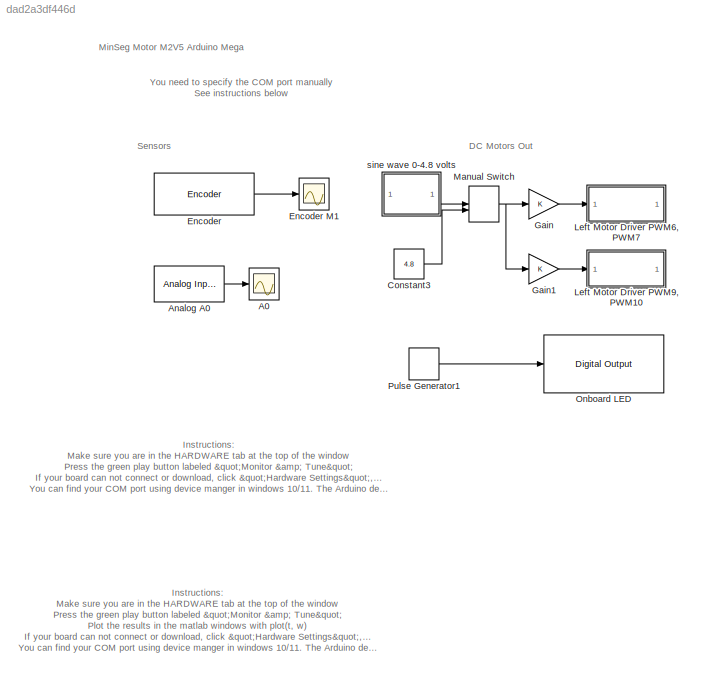
MODEL slx_dad2a3df446d
KIND model
CONFIG AbsTol = auto
CONFIG EnableMultiTasking = on
CONFIG FixedStep = .01
CONFIG MaxStep = auto
CONFIG MinStep = auto
CONFIG RelTol = 1e-3
CONFIG SampleTimeConstraint = Unconstrained
CONFIG SolverName = FixedStepDiscrete
CONFIG StartTime = 0.0
CONFIG StopTime = inf
BLOCK [Scope] A0
  ActiveDisplayYMaximum = 1150.875
  ActiveDisplayYMinimum = -127.875
  ContainerLayout = {"WindowBounds":[1405,118,727,839],"gridDimensions":{"w":1,"h":2},"tileCount":2,"tileCoverage":[1,2],"columnWeights":1,"rowWeights":[0.5,0.5],"tileOccupancy":[{"children":{"id":"/Encoder M1"}},{"children":{"id":"/A0"}}]}
  DataLoggingDecimateData = on
  DataLoggingDecimation = 1
  DataLoggingLimitDataPoints = on
  DataLoggingSaveFormat = Array
  Floating = off
  GraphicalSettings = {"Style":{"BackgroundColor":[0.12941176470588237,0.12941176470588237,0.12941176470588237],"AxesColor":[0.07058823529411765,0.07058823529411765,0.07058823529411765],"LabelsColor":[0.8509803921568627,0.8509803921568627,0.8509803921568627],"PreserveColors":false,"Visible":[true],"LineStyle":["-"],"LineWidth":[1.5],"BarWidth":[0.9],"LineColor":["auto"],"LineFaceAlpha":[1],"LineEdgeAlpha":[1],"Marker":...<+1932ch>
  MultipleDisplayCache = [{"MaxYLimMag":1150.875,"MaxYLimReal":1150.875,"MinYLimMag":0,"MinYLimReal":-127.875,"PlotAsMagnitudePhase":false,"ShowGrid":true,"ShowLegend":false,"Title":"%<SignalLabel>","YLabel":""}]
  NumInputPorts = 1
  ScopeFrameLocation = container
  Visible = on
  WasSavedAsWebScope = on
  WindowPosition = [1413.000000,491.000000,712.000000,801.000000,]
BLOCK [Reference] Analog A0  REF=arduinolib/Analog Input
  SourceBlock = arduinolib/Analog Input
  SourceType = Arduino Analog Input
BLOCK [Constant] Constant3
  Value = 4.8
BLOCK [Reference] Encoder  REF=arduinosensorlib/Encoder
  SourceBlock = arduinosensorlib/Encoder
  SourceType = Arduino Rotary Encoder
BLOCK [Scope] Encoder M1
  ActiveDisplayYMaximum = 36033.75
  ActiveDisplayYMinimum = -5613.7499999999991
  ContainerLayout = {"WindowBounds":[1405,118,727,839],"gridDimensions":{"w":1,"h":2},"tileCount":2,"tileCoverage":[1,2],"columnWeights":1,"rowWeights":[0.5,0.5],"tileOccupancy":[{"children":{"id":"/Encoder M1"}},{"children":{"id":"/A0"}}]}
  DataLoggingVariableName = ScopeData2
  Floating = off
  GraphicalSettings = {"Style":{"BackgroundColor":[0.12941176470588237,0.12941176470588237,0.12941176470588237],"AxesColor":[0.07058823529411765,0.07058823529411765,0.07058823529411765],"LabelsColor":[0.8509803921568627,0.8509803921568627,0.8509803921568627],"PreserveColors":false,"Visible":[true],"LineStyle":["-"],"LineWidth":[1.5],"BarWidth":[0.9],"LineColor":["auto"],"LineFaceAlpha":[1],"LineEdgeAlpha":[1],"Marker":...<+1937ch>
  MultipleDisplayCache = [{"MaxYLimMag":36033.75,"MaxYLimReal":36033.75,"MinYLimMag":0,"MinYLimReal":-5613.7499999999991,"PlotAsMagnitudePhase":false,"ShowGrid":true,"ShowLegend":false,"Title":"%<SignalLabel>","YLabel":""}]
  NumInputPorts = 1
  ScopeFrameLocation = container
  TimeSpanOverrunAction = Scroll
  Visible = on
  WasSavedAsWebScope = on
  WindowPosition = [1413.000000,491.000000,712.000000,801.000000,]
BLOCK [Gain] Gain
BLOCK [Gain] Gain1
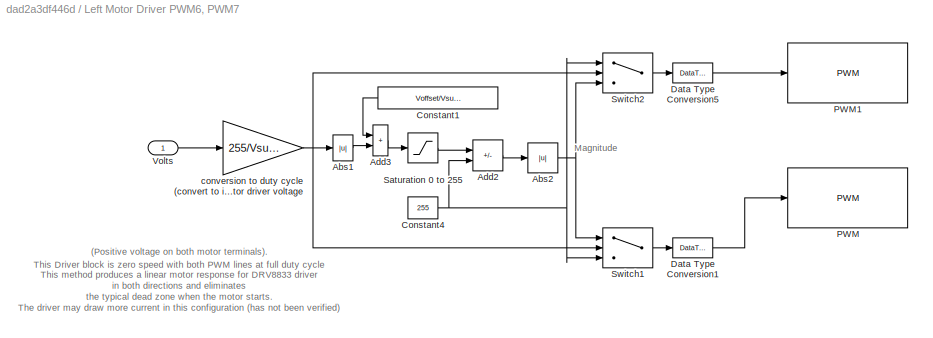
BLOCK [SubSystem] Left Motor Driver PWM6, PWM7
BLOCK [Abs] Left Motor Driver PWM6, PWM7/Abs1
  SaturateOnIntegerOverflow = off
BLOCK [Abs] Left Motor Driver PWM6, PWM7/Abs2
  SaturateOnIntegerOverflow = off
BLOCK [Sum] Left Motor Driver PWM6, PWM7/Add2
  IconShape = rectangular
  Inputs = -+
BLOCK [Sum] Left Motor Driver PWM6, PWM7/Add3
  IconShape = rectangular
BLOCK [Constant] Left Motor Driver PWM6, PWM7/Constant1
  NameLocation = top
  Value = Voffset/Vsupply*255
BLOCK [Constant] Left Motor Driver PWM6, PWM7/Constant4
  Value = 255
BLOCK [DataTypeConversion] Left Motor Driver PWM6, PWM7/Data Type Conversion1
  OutDataTypeStr = uint8
  RndMeth = Floor
  SaturateOnIntegerOverflow = off
BLOCK [DataTypeConversion] Left Motor Driver PWM6, PWM7/Data Type Conversion5
  OutDataTypeStr = uint8
  RndMeth = Floor
  SaturateOnIntegerOverflow = off
BLOCK [Reference] Left Motor Driver PWM6, PWM7/PWM  REF=arduinolib/PWM
  SourceBlock = arduinolib/PWM
  SourceType = Arduino PWM
BLOCK [Reference] Left Motor Driver PWM6, PWM7/PWM1  REF=arduinolib/PWM
  SourceBlock = arduinolib/PWM
  SourceType = Arduino PWM
BLOCK [Saturate] Left Motor Driver PWM6, PWM7/Saturation 0 to 255
  LowerLimit = 0
  UpperLimit = 255
BLOCK [Switch] Left Motor Driver PWM6, PWM7/Switch1
  InputSameDT = off
  SaturateOnIntegerOverflow = off
BLOCK [Switch] Left Motor Driver PWM6, PWM7/Switch2
  InputSameDT = off
  SaturateOnIntegerOverflow = off
BLOCK [Inport] Left Motor Driver PWM6, PWM7/Volts
BLOCK [Gain] Left Motor Driver PWM6, PWM7/conversion to duty cycle (convert to int) denominator is motor driver voltage
  Gain = 255/Vsupply
  OutDataTypeStr = int16
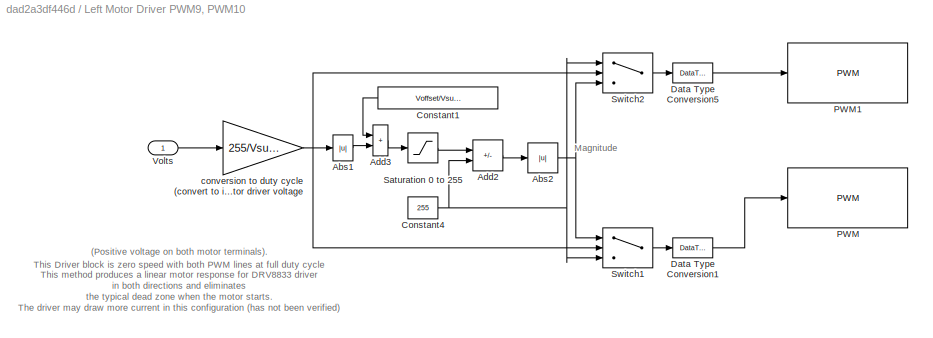
BLOCK [SubSystem] Left Motor Driver PWM9, PWM10
BLOCK [Abs] Left Motor Driver PWM9, PWM10/Abs1
  SaturateOnIntegerOverflow = off
BLOCK [Abs] Left Motor Driver PWM9, PWM10/Abs2
  SaturateOnIntegerOverflow = off
BLOCK [Sum] Left Motor Driver PWM9, PWM10/Add2
  IconShape = rectangular
  Inputs = -+
BLOCK [Sum] Left Motor Driver PWM9, PWM10/Add3
  IconShape = rectangular
BLOCK [Constant] Left Motor Driver PWM9, PWM10/Constant1
  NameLocation = top
  Value = Voffset/Vsupply*255
BLOCK [Constant] Left Motor Driver PWM9, PWM10/Constant4
  Value = 255
BLOCK [DataTypeConversion] Left Motor Driver PWM9, PWM10/Data Type Conversion1
  OutDataTypeStr = uint8
  RndMeth = Floor
  SaturateOnIntegerOverflow = off
BLOCK [DataTypeConversion] Left Motor Driver PWM9, PWM10/Data Type Conversion5
  OutDataTypeStr = uint8
  RndMeth = Floor
  SaturateOnIntegerOverflow = off
BLOCK [Reference] Left Motor Driver PWM9, PWM10/PWM  REF=arduinolib/PWM
  SourceBlock = arduinolib/PWM
  SourceType = Arduino PWM
BLOCK [Reference] Left Motor Driver PWM9, PWM10/PWM1  REF=arduinolib/PWM
  SourceBlock = arduinolib/PWM
  SourceType = Arduino PWM
BLOCK [Saturate] Left Motor Driver PWM9, PWM10/Saturation 0 to 255
  LowerLimit = 0
  UpperLimit = 255
BLOCK [Switch] Left Motor Driver PWM9, PWM10/Switch1
  InputSameDT = off
  SaturateOnIntegerOverflow = off
BLOCK [Switch] Left Motor Driver PWM9, PWM10/Switch2
  InputSameDT = off
  SaturateOnIntegerOverflow = off
BLOCK [Inport] Left Motor Driver PWM9, PWM10/Volts
BLOCK [Gain] Left Motor Driver PWM9, PWM10/conversion to duty cycle (convert to int) denominator is motor driver voltage
  Gain = 255/Vsupply
  OutDataTypeStr = int16
BLOCK [ManualSwitch] Manual Switch
BLOCK [Reference] Onboard LED  REF=arduinolib/Digital Output
  SourceBlock = arduinolib/Digital Output
  SourceType = Arduino Digital Output
BLOCK [DiscretePulseGenerator] Pulse Generator1
  Period = .3
  PulseType = Time based
  PulseWidth = 50
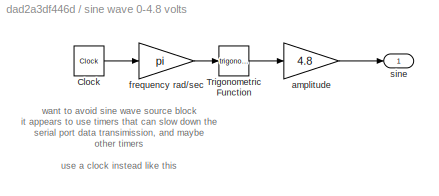
BLOCK [SubSystem] sine wave 0-4.8 volts
BLOCK [Clock] sine wave 0-4.8 volts/Clock
BLOCK [Trigonometry] sine wave 0-4.8 volts/Trigonometric Function
BLOCK [Gain] sine wave 0-4.8 volts/amplitude
  Gain = 4.8
BLOCK [Gain] sine wave 0-4.8 volts/frequency rad//sec
  Gain = pi
BLOCK [Outport] sine wave 0-4.8 volts/sine
ANNOTATION (root): Instructions : Make sure you are in the HARDWARE tab at the top of the window Press the green play button labeled "Monitor & Tune" If your board can not connect or download, click "Hardware Settings", "Hardware Implementation", "Target hardware resources", "Host-board connection" and "Set host COM port" to "Manually Select" set your COM port to the correct value manually. You can find your COM por...<+80ch>
ANNOTATION (root): Instructions : Make sure you are in the HARDWARE tab at the top of the window Press the green play button labeled "Monitor & Tune" Plot the results in the matlab windows with plot(t, w) If your board can not connect or download, click "Hardware Settings", "Hardware Implementation", "Target hardware resources", "Host-board connection" and "Set host COM port" to "Manually Select" set your COM port t...<+135ch>
ANNOTATION (root): You need to specify the COM port manually See instructions below
ANNOTATION (root): DC Motors Out
ANNOTATION (root): MinSeg Motor M2V5 Arduino Mega
ANNOTATION (root): Sensors
ANNOTATION Left Motor Driver PWM6, PWM7: Magnitude
ANNOTATION Left Motor Driver PWM6, PWM7: This Driver block is zero speed with both PWM lines at full duty cycle (Positive voltage on both motor terminals). This method produces a linear motor response for DRV8833 driver in both directions and eliminates the typical dead zone when the motor starts. The driver may draw more current in this configuration (has not been verified) The SN754410 driver this has no effect, so the driver could alt...<+76ch>
ANNOTATION Left Motor Driver PWM9, PWM10: Magnitude
ANNOTATION Left Motor Driver PWM9, PWM10: This Driver block is zero speed with both PWM lines at full duty cycle (Positive voltage on both motor terminals). This method produces a linear motor response for DRV8833 driver in both directions and eliminates the typical dead zone when the motor starts. The driver may draw more current in this configuration (has not been verified) The SN754410 driver this has no effect, so the driver could alt...<+76ch>
ANNOTATION sine wave 0-4.8 volts: want to avoid sine wave source block it appears to use timers that can slow down the serial port data transimission, and maybe other timers use a clock instead like this
LINE Analog A0:1 -> A0:1
LINE Constant3:1 -> Manual Switch:2
LINE Encoder:1 -> Encoder M1:1
LINE Gain1:1 -> Left Motor Driver PWM9, PWM10:1
LINE Gain:1 -> Left Motor Driver PWM6, PWM7:1
LINE Left Motor Driver PWM6, PWM7/Abs1:1 -> Left Motor Driver PWM6, PWM7/Add3:2
NET Left Motor Driver PWM6, PWM7/Abs2:1 -> Left Motor Driver PWM6, PWM7/Switch1:1, Left Motor Driver PWM6, PWM7/Switch2:3
LINE Left Motor Driver PWM6, PWM7/Add2:1 -> Left Motor Driver PWM6, PWM7/Abs2:1
LINE Left Motor Driver PWM6, PWM7/Add3:1 -> Left Motor Driver PWM6, PWM7/Saturation 0 to 255:1
LINE Left Motor Driver PWM6, PWM7/Constant1:1 -> Left Motor Driver PWM6, PWM7/Add3:1
NET Left Motor Driver PWM6, PWM7/Constant4:1 -> Left Motor Driver PWM6, PWM7/Add2:2, Left Motor Driver PWM6, PWM7/Switch1:3, Left Motor Driver PWM6, PWM7/Switch2:1
LINE Left Motor Driver PWM6, PWM7/Data Type Conversion1:1 -> Left Motor Driver PWM6, PWM7/PWM:1
LINE Left Motor Driver PWM6, PWM7/Data Type Conversion5:1 -> Left Motor Driver PWM6, PWM7/PWM1:1
LINE Left Motor Driver PWM6, PWM7/Saturation 0 to 255:1 -> Left Motor Driver PWM6, PWM7/Add2:1
LINE Left Motor Driver PWM6, PWM7/Switch1:1 -> Left Motor Driver PWM6, PWM7/Data Type Conversion1:1
LINE Left Motor Driver PWM6, PWM7/Switch2:1 -> Left Motor Driver PWM6, PWM7/Data Type Conversion5:1
LINE Left Motor Driver PWM6, PWM7/Volts:1 -> Left Motor Driver PWM6, PWM7/conversion to duty cycle (convert to int) denominator is motor driver voltage:1
NET Left Motor Driver PWM6, PWM7/conversion to duty cycle (convert to int) denominator is motor driver voltage:1 -> Left Motor Driver PWM6, PWM7/Abs1:1, Left Motor Driver PWM6, PWM7/Switch1:2, Left Motor Driver PWM6, PWM7/Switch2:2
LINE Left Motor Driver PWM9, PWM10/Abs1:1 -> Left Motor Driver PWM9, PWM10/Add3:2
NET Left Motor Driver PWM9, PWM10/Abs2:1 -> Left Motor Driver PWM9, PWM10/Switch1:1, Left Motor Driver PWM9, PWM10/Switch2:3
LINE Left Motor Driver PWM9, PWM10/Add2:1 -> Left Motor Driver PWM9, PWM10/Abs2:1
LINE Left Motor Driver PWM9, PWM10/Add3:1 -> Left Motor Driver PWM9, PWM10/Saturation 0 to 255:1
LINE Left Motor Driver PWM9, PWM10/Constant1:1 -> Left Motor Driver PWM9, PWM10/Add3:1
NET Left Motor Driver PWM9, PWM10/Constant4:1 -> Left Motor Driver PWM9, PWM10/Add2:2, Left Motor Driver PWM9, PWM10/Switch1:3, Left Motor Driver PWM9, PWM10/Switch2:1
LINE Left Motor Driver PWM9, PWM10/Data Type Conversion1:1 -> Left Motor Driver PWM9, PWM10/PWM:1
LINE Left Motor Driver PWM9, PWM10/Data Type Conversion5:1 -> Left Motor Driver PWM9, PWM10/PWM1:1
LINE Left Motor Driver PWM9, PWM10/Saturation 0 to 255:1 -> Left Motor Driver PWM9, PWM10/Add2:1
LINE Left Motor Driver PWM9, PWM10/Switch1:1 -> Left Motor Driver PWM9, PWM10/Data Type Conversion1:1
LINE Left Motor Driver PWM9, PWM10/Switch2:1 -> Left Motor Driver PWM9, PWM10/Data Type Conversion5:1
LINE Left Motor Driver PWM9, PWM10/Volts:1 -> Left Motor Driver PWM9, PWM10/conversion to duty cycle (convert to int) denominator is motor driver voltage:1
NET Left Motor Driver PWM9, PWM10/conversion to duty cycle (convert to int) denominator is motor driver voltage:1 -> Left Motor Driver PWM9, PWM10/Abs1:1, Left Motor Driver PWM9, PWM10/Switch1:2, Left Motor Driver PWM9, PWM10/Switch2:2
NET Manual Switch:1 -> Gain1:1, Gain:1
LINE Pulse Generator1:1 -> Onboard LED:1
LINE sine wave 0-4.8 volts/Clock:1 -> sine wave 0-4.8 volts/frequency rad//sec:1
LINE sine wave 0-4.8 volts/Trigonometric Function:1 -> sine wave 0-4.8 volts/amplitude:1
LINE sine wave 0-4.8 volts/amplitude:1 -> sine wave 0-4.8 volts/sine:1
LINE sine wave 0-4.8 volts/frequency rad//sec:1 -> sine wave 0-4.8 volts/Trigonometric Function:1
LINE sine wave 0-4.8 volts:1 -> Manual Switch:1
note: NET lines group one-source signal fan-out (src -> all destinations, sorted); 1:1 wires keep LINE
